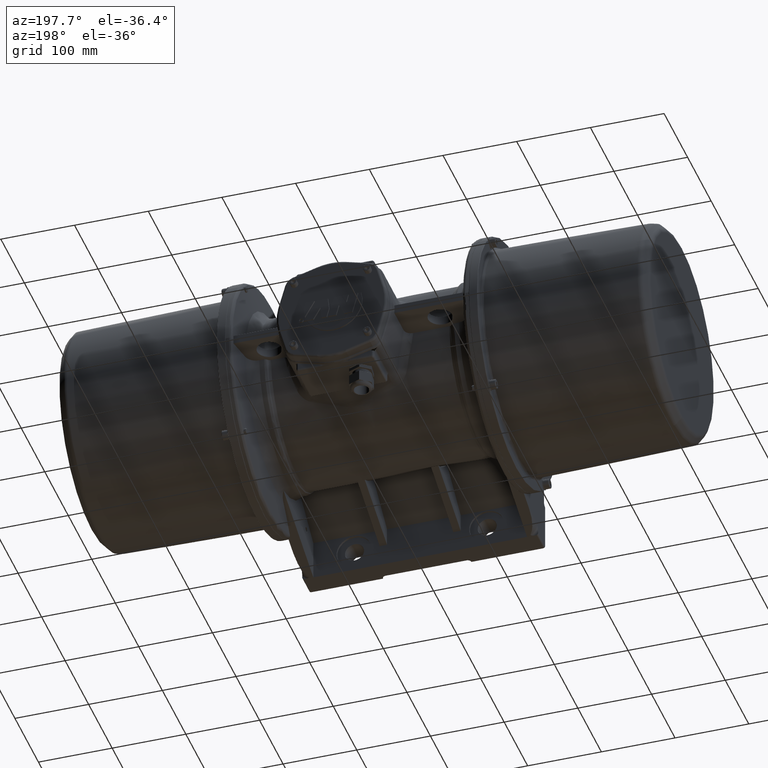
[diagram: clean part render]
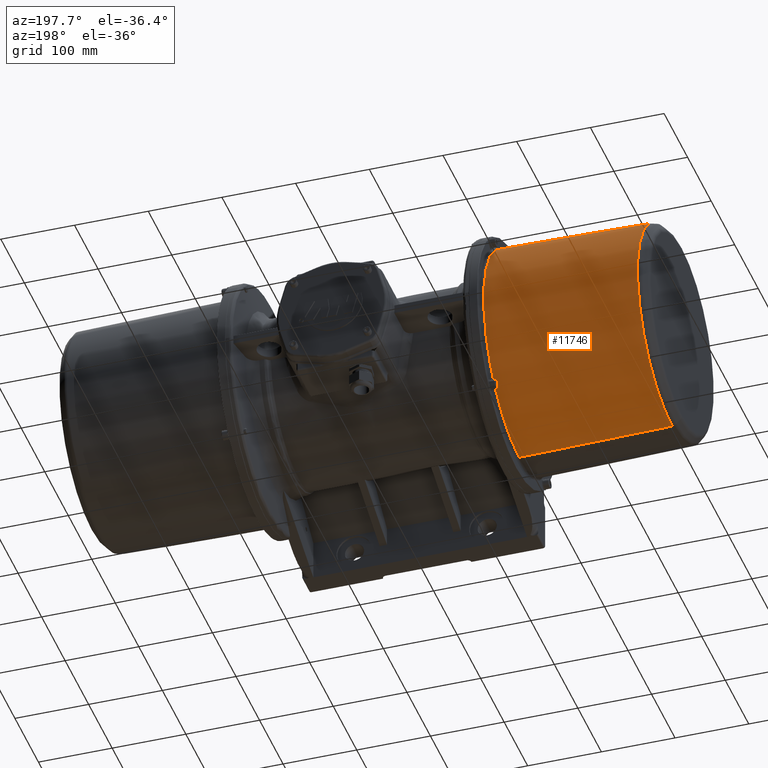
[diagram: same view with one face highlighted and labeled with its STEP entity id]
A machine part, auxiliary view. The second image highlights one B-rep face of the part: STEP entity #11746.
In plain terms, the highlighted conical surface has half-angle 1 deg.
Its self-contained STEP definition (entity closure, byte-faithful):
#733 = CARTESIAN_POINT ( 'NONE',  ( -179.9473193041400000, -3.000143587975205000E-014, -2.054018083976005000E-015 ) ) ;
#756 = DIRECTION ( 'NONE',  ( -1.000000000000000000, -1.375271541924813800E-016, -1.374141805576009900E-016 ) ) ;
#757 = DIRECTION ( 'NONE',  ( 1.844854992271087100E-016, 0.0000000000000000000, -1.000000000000000000 ) ) ;
#1084 = CARTESIAN_POINT ( 'NONE',  ( -390.9996765234520200, -5.902686595373899900E-014, -146.7646161053622200 ) ) ;
#1085 = DIRECTION ( 'NONE',  ( 0.9998476951563912700, 1.375062081407701300E-016, -0.01745240643727936600 ) ) ;
#1790 = CIRCLE ( 'NONE', #4597, 150.4485487038780000 ) ;
#2058 = LINE ( 'NONE', #1084, #2063 ) ;
#2063 = VECTOR ( 'NONE', #1085, 1000.000000000000200 ) ;
#2368 = CIRCLE ( 'NONE', #4756, 146.8260628046224100 ) ;
#2531 = LINE ( 'NONE', #5266, #2549 ) ;
#2549 = VECTOR ( 'NONE', #5284, 1000.000000000000200 ) ;
#4597 = AXIS2_PLACEMENT_3D ( 'NONE', #733, #756, #757 ) ;
#4738 = CARTESIAN_POINT ( 'NONE',  ( -387.4793974805005000, -5.854273199499850500E-014, -3.057186854599654600E-014 ) ) ;
#4740 = DIRECTION ( 'NONE',  ( 1.000000000000000000, 1.375271541924813800E-016, 1.374141805576009900E-016 ) ) ;
#4742 = DIRECTION ( 'NONE',  ( 0.0000000000000000000, 0.0000000000000000000, 1.000000000000000000 ) ) ;
#4756 = AXIS2_PLACEMENT_3D ( 'NONE', #4738, #4740, #4742 ) ;
#5266 = CARTESIAN_POINT ( 'NONE',  ( -390.9996765234520200, -4.105338421958681300E-014, 146.7646161053621700 ) ) ;
#5284 = DIRECTION ( 'NONE',  ( 0.9998476951563912700, 1.396435115088534600E-016, 0.01745240643727964000 ) ) ;
#5806 = ORIENTED_EDGE ( 'NONE', *, *, #41072, .T. ) ;
#5809 = ORIENTED_EDGE ( 'NONE', *, *, #41203, .T. ) ;
#5813 = ORIENTED_EDGE ( 'NONE', *, *, #40645, .T. ) ;
#5814 = ORIENTED_EDGE ( 'NONE', *, *, #40734, .F. ) ;
#7429 = CARTESIAN_POINT ( 'NONE',  ( -387.4793974805005000, -4.056172521048955700E-014, -146.8260628046224100 ) ) ;
#7982 = CARTESIAN_POINT ( 'NONE',  ( -387.4793974805005000, -5.854273199499847900E-014, 146.8260628046223500 ) ) ;
#9208 = CARTESIAN_POINT ( 'NONE',  ( -179.9473193041399700, -3.000143587975201200E-014, -150.4485487038778300 ) ) ;
#9283 = CARTESIAN_POINT ( 'NONE',  ( -179.9473193041400200, -1.157680251909515200E-014, 150.4485487038778300 ) ) ;
#11746 = ADVANCED_FACE ( 'NONE', ( #65305 ), #65328, .T. ) ;
#18999 = VERTEX_POINT ( 'NONE', #7429 ) ;
#19301 = VERTEX_POINT ( 'NONE', #7982 ) ;
#28309 = VERTEX_POINT ( 'NONE', #9208 ) ;
#28390 = VERTEX_POINT ( 'NONE', #9283 ) ;
#38194 = EDGE_LOOP ( 'NONE', ( #5806, #5809, #5813, #5814 ) ) ;
#40645 = EDGE_CURVE ( 'NONE', #28390, #28309, #1790, .T. ) ;
#40734 = EDGE_CURVE ( 'NONE', #18999, #28309, #2058, .T. ) ;
#41072 = EDGE_CURVE ( 'NONE', #18999, #19301, #2368, .T. ) ;
#41203 = EDGE_CURVE ( 'NONE', #19301, #28390, #2531, .T. ) ;
#58956 = AXIS2_PLACEMENT_3D ( 'NONE', #64272, #64264, #64262 ) ;
#64262 = DIRECTION ( 'NONE',  ( 0.0000000000000000000, 0.0000000000000000000, -1.000000000000000000 ) ) ;
#64264 = DIRECTION ( 'NONE',  ( 1.000000000000000000, 1.375271541924813800E-016, 1.374141805576009900E-016 ) ) ;
#64272 = CARTESIAN_POINT ( 'NONE',  ( -390.9996765234520200, -5.902686595373899900E-014, -3.105560480601780200E-014 ) ) ;
#65305 = FACE_OUTER_BOUND ( 'NONE', #38194, .T. ) ;
#65328 = CONICAL_SURFACE ( 'NONE', #58956, 146.7646161053621900, 0.01745329251993928800 ) ;